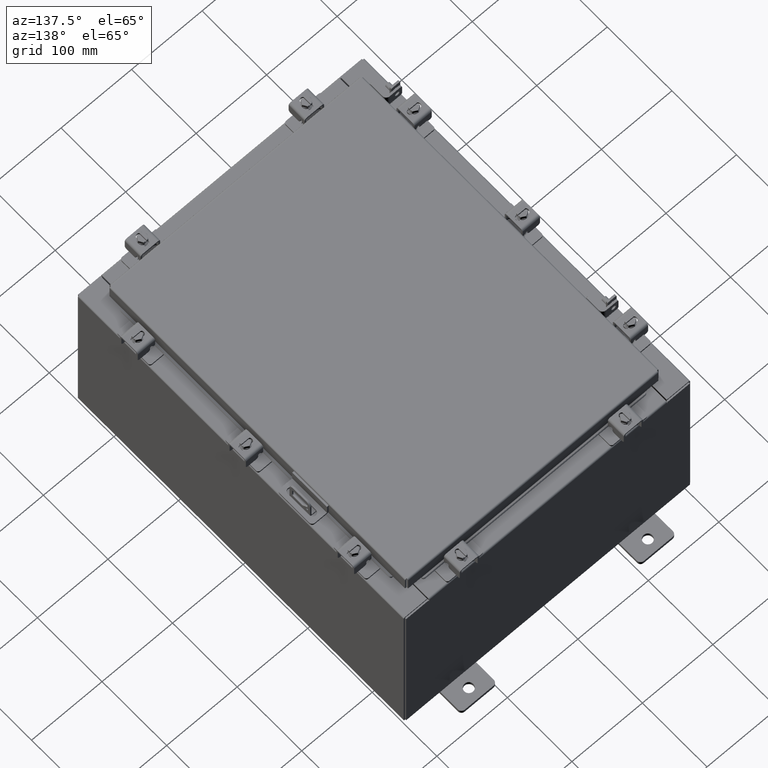
[diagram: clean part render]
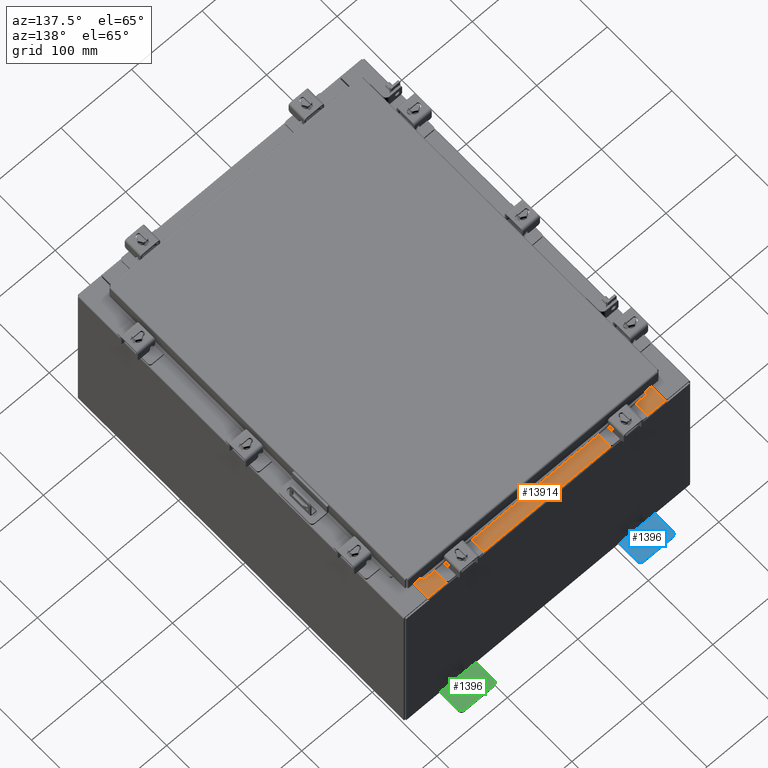
[diagram: same view with three faces highlighted in distinct colors, each labeled with its STEP entity id]
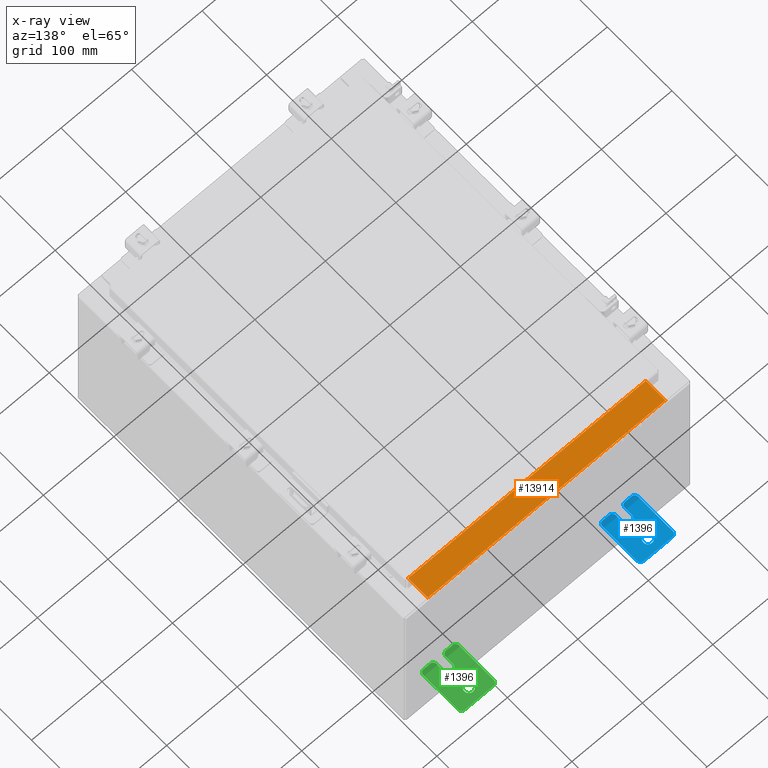
[diagram: x-ray of the same camera — body ghosted, the three highlighted faces saturated]
A machine part, auxiliary view with three faces highlighted in distinct colors.
The next image is the same camera in x-ray (body ghosted, the three faces saturated) — at least one of them is partly hidden behind the body in this view.
Their STEP definitions:

[orange] entity #13914 — the highlighted planar face has unit normal (0, 0, 1).
#375 = CARTESIAN_POINT ( 'NONE',  ( 6.637200000000000000, -1.287299999999999900, 5.000000000000005300 ) ) ;
#625 = CARTESIAN_POINT ( 'NONE',  ( 6.637200000000000900, -1.287299999999999900, 5.000000000000005300 ) ) ;
#1288 = VECTOR ( 'NONE', #18999, 39.37007874015748100 ) ;
#1534 = VERTEX_POINT ( 'NONE', #17294 ) ;
#1683 = DIRECTION ( 'NONE',  ( 0.0000000000000000000, 3.566381192773190000E-015, 1.000000000000000000 ) ) ;
#1830 = LINE ( 'NONE', #17081, #1288 ) ;
#1990 = CARTESIAN_POINT ( 'NONE',  ( 6.637199999999999100, -0.08769999999999993100, 5.000000000000000900 ) ) ;
#2374 = ORIENTED_EDGE ( 'NONE', *, *, #8802, .F. ) ;
#2936 = DIRECTION ( 'NONE',  ( -1.000000000000000000, 0.0000000000000000000, 0.0000000000000000000 ) ) ;
#3814 = EDGE_LOOP ( 'NONE', ( #2374, #16915, #19283, #17728 ) ) ;
#3996 = EDGE_CURVE ( 'NONE', #18547, #4115, #5377, .T. ) ;
#4082 = LINE ( 'NONE', #13237, #9203 ) ;
#4115 = VERTEX_POINT ( 'NONE', #375 ) ;
#5037 = CARTESIAN_POINT ( 'NONE',  ( 0.0000000000000000000, 1.782631094477738200E-014, 5.000000000000000900 ) ) ;
#5377 = LINE ( 'NONE', #15622, #14579 ) ;
#7287 = AXIS2_PLACEMENT_3D ( 'NONE', #5037, #1683, #13716 ) ;
#8802 = EDGE_CURVE ( 'NONE', #1534, #20853, #1830, .T. ) ;
#9203 = VECTOR ( 'NONE', #2936, 39.37007874015748100 ) ;
#9397 = FACE_OUTER_BOUND ( 'NONE', #3814, .T. ) ;
#10657 = EDGE_CURVE ( 'NONE', #4115, #1534, #13039, .T. ) ;
#10999 = CARTESIAN_POINT ( 'NONE',  ( -6.637200000000000000, -0.08770000000000026400, 5.000000000000000900 ) ) ;
#11530 = EDGE_CURVE ( 'NONE', #18547, #20853, #4082, .T. ) ;
#12673 = DIRECTION ( 'NONE',  ( -1.000000000000000000, 0.0000000000000000000, 0.0000000000000000000 ) ) ;
#13039 = LINE ( 'NONE', #625, #21830 ) ;
#13237 = CARTESIAN_POINT ( 'NONE',  ( 0.0000000000000000000, -0.08770000000000026400, 5.000000000000000900 ) ) ;
#13716 = DIRECTION ( 'NONE',  ( 0.0000000000000000000, -1.000000000000000000, 3.566381192773190000E-015 ) ) ;
#13871 = DIRECTION ( 'NONE',  ( -0.0000000000000000000, -1.000000000000000000, 3.566381192773190000E-015 ) ) ;
#13914 = ADVANCED_FACE ( 'NONE', ( #9397 ), #22503, .T. ) ;
#14579 = VECTOR ( 'NONE', #13871, 39.37007874015748100 ) ;
#15622 = CARTESIAN_POINT ( 'NONE',  ( 6.637200000000000000, -1.300299999999999800, 5.000000000000005300 ) ) ;
#16915 = ORIENTED_EDGE ( 'NONE', *, *, #10657, .F. ) ;
#17081 = CARTESIAN_POINT ( 'NONE',  ( -6.637200000000000000, -0.07469999999999973900, 5.000000000000000900 ) ) ;
#17294 = CARTESIAN_POINT ( 'NONE',  ( -6.637200000000000000, -1.287299999999999200, 5.000000000000005300 ) ) ;
#17728 = ORIENTED_EDGE ( 'NONE', *, *, #11530, .T. ) ;
#18547 = VERTEX_POINT ( 'NONE', #1990 ) ;
#18999 = DIRECTION ( 'NONE',  ( -0.0000000000000000000, 1.000000000000000000, -3.566381192773190000E-015 ) ) ;
#19283 = ORIENTED_EDGE ( 'NONE', *, *, #3996, .F. ) ;
#20853 = VERTEX_POINT ( 'NONE', #10999 ) ;
#21830 = VECTOR ( 'NONE', #12673, 39.37007874015748100 ) ;
#22503 = PLANE ( 'NONE',  #7287 ) ;

[blue] entity #1396 — the highlighted planar face has unit normal (0, 0, 1).
#1115 = DIRECTION ( 'NONE',  ( 0.0000000000000000000, 0.0000000000000000000, -1.000000000000000000 ) ) ;
#1396 = ADVANCED_FACE ( 'NONE', ( #20990, #16293 ), #9125, .T. ) ;
#1501 = VERTEX_POINT ( 'NONE', #1643 ) ;
#1643 = CARTESIAN_POINT ( 'NONE',  ( 0.0000000000000000000, -1.060000000000004500, -1.000000000000006400 ) ) ;
#2095 = ORIENTED_EDGE ( 'NONE', *, *, #17208, .T. ) ;
#2319 = VERTEX_POINT ( 'NONE', #14204 ) ;
#2434 = CARTESIAN_POINT ( 'NONE',  ( 0.0000000000000000000, -1.250000000000004700, -0.4400000000000002200 ) ) ;
#2497 = DIRECTION ( 'NONE',  ( 1.000000000000000000, 0.0000000000000000000, -0.0000000000000000000 ) ) ;
#2581 = AXIS2_PLACEMENT_3D ( 'NONE', #19738, #9246, #21494 ) ;
#3083 = DIRECTION ( 'NONE',  ( 6.556435184794182400E-016, 1.000000000000000000, 0.0000000000000000000 ) ) ;
#3585 = VERTEX_POINT ( 'NONE', #12907 ) ;
#4141 = CARTESIAN_POINT ( 'NONE',  ( 0.0000000000000000000, -1.060000000000002100, 0.4400000000000016700 ) ) ;
#4634 = CARTESIAN_POINT ( 'NONE',  ( 0.0000000000000000000, 1.059999999999993400, -1.000000000000010000 ) ) ;
#4668 = CARTESIAN_POINT ( 'NONE',  ( 0.0000000000000000000, -1.250000000000002200, 0.9999999999999992200 ) ) ;
#4734 = AXIS2_PLACEMENT_3D ( 'NONE', #20547, #10025, #22306 ) ;
#4813 = DIRECTION ( 'NONE',  ( -1.000000000000000000, 6.523827964459549700E-016, 5.163192708025532000E-017 ) ) ;
#4957 = LINE ( 'NONE', #14169, #9001 ) ;
#5060 = ORIENTED_EDGE ( 'NONE', *, *, #18782, .T. ) ;
#5197 = CARTESIAN_POINT ( 'NONE',  ( 4.039428427013647300E-016, 0.6249999999999992200, -9.783840404509077400E-018 ) ) ;
#5698 = VECTOR ( 'NONE', #11198, 39.37007874015748100 ) ;
#5705 = EDGE_CURVE ( 'NONE', #13913, #8416, #6761, .T. ) ;
#5868 = DIRECTION ( 'NONE',  ( 0.0000000000000000000, 0.0000000000000000000, -1.000000000000000000 ) ) ;
#6230 = AXIS2_PLACEMENT_3D ( 'NONE', #7032, #19242, #8781 ) ;
#6367 = DIRECTION ( 'NONE',  ( 0.0000000000000000000, 1.639108796198553600E-015, 1.000000000000000000 ) ) ;
#6431 = AXIS2_PLACEMENT_3D ( 'NONE', #21926, #11411, #1115 ) ;
#6540 = VECTOR ( 'NONE', #22109, 39.37007874015748100 ) ;
#6579 = DIRECTION ( 'NONE',  ( -6.556435184794182400E-016, -1.000000000000000000, -1.639108796198545600E-016 ) ) ;
#6728 = CARTESIAN_POINT ( 'NONE',  ( 0.0000000000000000000, 0.0000000000000000000, 0.0000000000000000000 ) ) ;
#6761 = CIRCLE ( 'NONE', #18742, 0.1900000000000011100 ) ;
#6861 = AXIS2_PLACEMENT_3D ( 'NONE', #12813, #2497, #14537 ) ;
#6933 = DIRECTION ( 'NONE',  ( -5.163192708025533800E-017, 0.0000000000000000000, -1.000000000000000000 ) ) ;
#7032 = CARTESIAN_POINT ( 'NONE',  ( 4.039428427013647300E-016, 0.6249999999999992200, -9.783840404509077400E-018 ) ) ;
#7393 = VECTOR ( 'NONE', #13589, 39.37007874015748100 ) ;
#7488 = CARTESIAN_POINT ( 'NONE',  ( 0.0000000000000000000, -1.250000000000005300, -0.8100000000000047200 ) ) ;
#7715 = DIRECTION ( 'NONE',  ( 1.000000000000000000, 0.0000000000000000000, -0.0000000000000000000 ) ) ;
#7755 = ORIENTED_EDGE ( 'NONE', *, *, #14807, .T. ) ;
#7798 = ORIENTED_EDGE ( 'NONE', *, *, #15648, .T. ) ;
#7835 = LINE ( 'NONE', #11726, #13006 ) ;
#8027 = CIRCLE ( 'NONE', #6861, 0.1900000000000011100 ) ;
#8416 = VERTEX_POINT ( 'NONE', #19563 ) ;
#8440 = CARTESIAN_POINT ( 'NONE',  ( 4.168508244714285900E-016, 0.6249999999999992200, 0.2499999999999999200 ) ) ;
#8516 = CARTESIAN_POINT ( 'NONE',  ( 0.0000000000000000000, -1.060000000000001200, 0.9999999999999988900 ) ) ;
#8781 = DIRECTION ( 'NONE',  ( -5.163192708025533800E-017, 0.0000000000000000000, -1.000000000000000000 ) ) ;
#9001 = VECTOR ( 'NONE', #17731, 39.37007874015748100 ) ;
#9125 = PLANE ( 'NONE',  #15109 ) ;
#9246 = DIRECTION ( 'NONE',  ( 1.000000000000000000, 0.0000000000000000000, -0.0000000000000000000 ) ) ;
#9325 = AXIS2_PLACEMENT_3D ( 'NONE', #15169, #4813, #16970 ) ;
#9759 = CIRCLE ( 'NONE', #9777, 0.1900000000000011400 ) ;
#9777 = AXIS2_PLACEMENT_3D ( 'NONE', #4141, #16263, #5868 ) ;
#9815 = VERTEX_POINT ( 'NONE', #19126 ) ;
#9961 = EDGE_CURVE ( 'NONE', #8416, #20334, #4957, .T. ) ;
#10025 = DIRECTION ( 'NONE',  ( 1.000000000000000000, 0.0000000000000000000, -0.0000000000000000000 ) ) ;
#10557 = LINE ( 'NONE', #4668, #6540 ) ;
#11021 = VECTOR ( 'NONE', #6367, 39.37007874015748100 ) ;
#11198 = DIRECTION ( 'NONE',  ( 0.0000000000000000000, 1.000000000000000000, -1.639108796198558100E-015 ) ) ;
#11230 = EDGE_LOOP ( 'NONE', ( #11815, #19361, #15240, #13222, #15019, #2095, #5060, #21508, #15518, #7755, #19694, #7798, #22232, #18959 ) ) ;
#11406 = VERTEX_POINT ( 'NONE', #12807 ) ;
#11407 = EDGE_CURVE ( 'NONE', #1501, #17744, #15458, .T. ) ;
#11411 = DIRECTION ( 'NONE',  ( 1.000000000000000000, 0.0000000000000000000, -0.0000000000000000000 ) ) ;
#11689 = VECTOR ( 'NONE', #6579, 39.37007874015748100 ) ;
#11726 = CARTESIAN_POINT ( 'NONE',  ( 6.829619984160658000E-017, -1.250000000000003800, 0.2500000000000005000 ) ) ;
#11783 = CARTESIAN_POINT ( 'NONE',  ( 4.780733988912460100E-016, -0.6249999999999993300, -0.2499999999999993900 ) ) ;
#11815 = ORIENTED_EDGE ( 'NONE', *, *, #16713, .T. ) ;
#12247 = VERTEX_POINT ( 'NONE', #2434 ) ;
#12287 = CIRCLE ( 'NONE', #9325, 0.2499999999999999200 ) ;
#12539 = LINE ( 'NONE', #18988, #7393 ) ;
#12807 = CARTESIAN_POINT ( 'NONE',  ( 4.780733988912460100E-016, -0.6249999999999993300, -0.2499999999999998600 ) ) ;
#12813 = CARTESIAN_POINT ( 'NONE',  ( 0.0000000000000000000, 1.059999999999996300, 0.8099999999999938400 ) ) ;
#12905 = DIRECTION ( 'NONE',  ( -0.0000000000000000000, 0.0000000000000000000, -1.000000000000000000 ) ) ;
#12907 = CARTESIAN_POINT ( 'NONE',  ( 0.0000000000000000000, 1.249999999999997300, 0.8099999999999935000 ) ) ;
#13006 = VECTOR ( 'NONE', #3083, 39.37007874015748100 ) ;
#13015 = EDGE_CURVE ( 'NONE', #15623, #3585, #15650, .T. ) ;
#13222 = ORIENTED_EDGE ( 'NONE', *, *, #19091, .T. ) ;
#13580 = CIRCLE ( 'NONE', #13703, 0.2499999999999999200 ) ;
#13589 = DIRECTION ( 'NONE',  ( 0.0000000000000000000, -1.000000000000000000, 1.639108796198558100E-015 ) ) ;
#13703 = AXIS2_PLACEMENT_3D ( 'NONE', #5197, #17377, #6933 ) ;
#13867 = DIRECTION ( 'NONE',  ( 1.000000000000000000, 0.0000000000000000000, -0.0000000000000000000 ) ) ;
#13913 = VERTEX_POINT ( 'NONE', #8516 ) ;
#14169 = CARTESIAN_POINT ( 'NONE',  ( 0.0000000000000000000, -1.250000000000002200, 0.9999999999999992200 ) ) ;
#14202 = EDGE_CURVE ( 'NONE', #3585, #20916, #8027, .T. ) ;
#14204 = CARTESIAN_POINT ( 'NONE',  ( 1.928684683526964400E-016, -1.060000000000003400, -0.2499999999999994400 ) ) ;
#14527 = VERTEX_POINT ( 'NONE', #8440 ) ;
#14537 = DIRECTION ( 'NONE',  ( 0.0000000000000000000, 0.0000000000000000000, -1.000000000000000000 ) ) ;
#14600 = CARTESIAN_POINT ( 'NONE',  ( 0.0000000000000000000, -1.250000000000003100, 0.4400000000000020000 ) ) ;
#14807 = EDGE_CURVE ( 'NONE', #17567, #1501, #19778, .T. ) ;
#15019 = ORIENTED_EDGE ( 'NONE', *, *, #19998, .T. ) ;
#15109 = AXIS2_PLACEMENT_3D ( 'NONE', #6728, #13867, #12905 ) ;
#15118 = CIRCLE ( 'NONE', #6230, 0.2499999999999999200 ) ;
#15136 = CARTESIAN_POINT ( 'NONE',  ( 0.0000000000000000000, 1.249999999999994700, -0.8100000000000092700 ) ) ;
#15169 = CARTESIAN_POINT ( 'NONE',  ( 4.780733988912460100E-016, -0.6249999999999993300, 5.858939755051854500E-017 ) ) ;
#15240 = ORIENTED_EDGE ( 'NONE', *, *, #9961, .T. ) ;
#15458 = LINE ( 'NONE', #19958, #5698 ) ;
#15518 = ORIENTED_EDGE ( 'NONE', *, *, #19312, .T. ) ;
#15623 = VERTEX_POINT ( 'NONE', #15136 ) ;
#15648 = EDGE_CURVE ( 'NONE', #17744, #15623, #17813, .T. ) ;
#15650 = LINE ( 'NONE', #18544, #11021 ) ;
#15993 = EDGE_CURVE ( 'NONE', #2319, #12247, #21107, .T. ) ;
#16263 = DIRECTION ( 'NONE',  ( 1.000000000000000000, 0.0000000000000000000, -0.0000000000000000000 ) ) ;
#16293 = FACE_OUTER_BOUND ( 'NONE', #11230, .T. ) ;
#16713 = EDGE_CURVE ( 'NONE', #20916, #13913, #12539, .T. ) ;
#16970 = DIRECTION ( 'NONE',  ( -6.523827964459551700E-016, -1.000000000000000000, 0.0000000000000000000 ) ) ;
#17208 = EDGE_CURVE ( 'NONE', #9815, #11406, #12287, .T. ) ;
#17377 = DIRECTION ( 'NONE',  ( 1.000000000000000000, -0.0000000000000000000, -5.163192708025532000E-017 ) ) ;
#17567 = VERTEX_POINT ( 'NONE', #7488 ) ;
#17731 = DIRECTION ( 'NONE',  ( 0.0000000000000000000, -1.639108796198553600E-015, -1.000000000000000000 ) ) ;
#17744 = VERTEX_POINT ( 'NONE', #4634 ) ;
#17813 = CIRCLE ( 'NONE', #4734, 0.1900000000000011100 ) ;
#18183 = CARTESIAN_POINT ( 'NONE',  ( 0.0000000000000000000, -1.060000000000001600, 0.8099999999999978300 ) ) ;
#18544 = CARTESIAN_POINT ( 'NONE',  ( 0.0000000000000000000, 1.249999999999994200, -1.000000000000010400 ) ) ;
#18742 = AXIS2_PLACEMENT_3D ( 'NONE', #18183, #7715, #19961 ) ;
#18782 = EDGE_CURVE ( 'NONE', #11406, #2319, #21032, .T. ) ;
#18906 = EDGE_CURVE ( 'NONE', #14527, #21477, #13580, .T. ) ;
#18959 = ORIENTED_EDGE ( 'NONE', *, *, #14202, .T. ) ;
#18988 = CARTESIAN_POINT ( 'NONE',  ( 0.0000000000000000000, 1.249999999999997600, 0.9999999999999951200 ) ) ;
#19091 = EDGE_CURVE ( 'NONE', #20334, #21445, #9759, .T. ) ;
#19126 = CARTESIAN_POINT ( 'NONE',  ( 0.0000000000000000000, -0.6249999999999992200, 0.2500000000000005000 ) ) ;
#19166 = ORIENTED_EDGE ( 'NONE', *, *, #18906, .F. ) ;
#19242 = DIRECTION ( 'NONE',  ( 1.000000000000000000, -0.0000000000000000000, -5.163192708025532000E-017 ) ) ;
#19312 = EDGE_CURVE ( 'NONE', #12247, #17567, #10557, .T. ) ;
#19361 = ORIENTED_EDGE ( 'NONE', *, *, #5705, .T. ) ;
#19563 = CARTESIAN_POINT ( 'NONE',  ( 0.0000000000000000000, -1.250000000000002400, 0.8099999999999980500 ) ) ;
#19674 = ORIENTED_EDGE ( 'NONE', *, *, #21442, .F. ) ;
#19683 = EDGE_LOOP ( 'NONE', ( #19674, #19166 ) ) ;
#19694 = ORIENTED_EDGE ( 'NONE', *, *, #11407, .T. ) ;
#19738 = CARTESIAN_POINT ( 'NONE',  ( 0.0000000000000000000, -1.060000000000004100, -0.8100000000000050500 ) ) ;
#19778 = CIRCLE ( 'NONE', #2581, 0.1900000000000011100 ) ;
#19958 = CARTESIAN_POINT ( 'NONE',  ( 0.0000000000000000000, -1.250000000000005600, -1.000000000000006200 ) ) ;
#19961 = DIRECTION ( 'NONE',  ( 0.0000000000000000000, 0.0000000000000000000, -1.000000000000000000 ) ) ;
#19998 = EDGE_CURVE ( 'NONE', #21445, #9815, #7835, .T. ) ;
#20334 = VERTEX_POINT ( 'NONE', #14600 ) ;
#20547 = CARTESIAN_POINT ( 'NONE',  ( 0.0000000000000000000, 1.059999999999993600, -0.8100000000000089400 ) ) ;
#20916 = VERTEX_POINT ( 'NONE', #21729 ) ;
#20934 = CARTESIAN_POINT ( 'NONE',  ( 1.928684683526972300E-016, -1.060000000000002100, 0.2500000000000005000 ) ) ;
#20990 = FACE_BOUND ( 'NONE', #19683, .T. ) ;
#21007 = CARTESIAN_POINT ( 'NONE',  ( 3.910348609313009100E-016, 0.6249999999999992200, -0.2499999999999999200 ) ) ;
#21032 = LINE ( 'NONE', #11783, #11689 ) ;
#21107 = CIRCLE ( 'NONE', #6431, 0.1900000000000011100 ) ;
#21442 = EDGE_CURVE ( 'NONE', #21477, #14527, #15118, .T. ) ;
#21445 = VERTEX_POINT ( 'NONE', #20934 ) ;
#21477 = VERTEX_POINT ( 'NONE', #21007 ) ;
#21494 = DIRECTION ( 'NONE',  ( 0.0000000000000000000, 0.0000000000000000000, -1.000000000000000000 ) ) ;
#21508 = ORIENTED_EDGE ( 'NONE', *, *, #15993, .T. ) ;
#21729 = CARTESIAN_POINT ( 'NONE',  ( 0.0000000000000000000, 1.059999999999996500, 0.9999999999999953400 ) ) ;
#21926 = CARTESIAN_POINT ( 'NONE',  ( 0.0000000000000000000, -1.060000000000003400, -0.4400000000000005000 ) ) ;
#22109 = DIRECTION ( 'NONE',  ( 0.0000000000000000000, -1.639108796198553600E-015, -1.000000000000000000 ) ) ;
#22232 = ORIENTED_EDGE ( 'NONE', *, *, #13015, .T. ) ;
#22306 = DIRECTION ( 'NONE',  ( 0.0000000000000000000, 0.0000000000000000000, -1.000000000000000000 ) ) ;

[green] entity #1396 — the highlighted planar face has unit normal (0, 0, 1).
#1115 = DIRECTION ( 'NONE',  ( 0.0000000000000000000, 0.0000000000000000000, -1.000000000000000000 ) ) ;
#1396 = ADVANCED_FACE ( 'NONE', ( #20990, #16293 ), #9125, .T. ) ;
#1501 = VERTEX_POINT ( 'NONE', #1643 ) ;
#1643 = CARTESIAN_POINT ( 'NONE',  ( 0.0000000000000000000, -1.060000000000004500, -1.000000000000006400 ) ) ;
#2095 = ORIENTED_EDGE ( 'NONE', *, *, #17208, .T. ) ;
#2319 = VERTEX_POINT ( 'NONE', #14204 ) ;
#2434 = CARTESIAN_POINT ( 'NONE',  ( 0.0000000000000000000, -1.250000000000004700, -0.4400000000000002200 ) ) ;
#2497 = DIRECTION ( 'NONE',  ( 1.000000000000000000, 0.0000000000000000000, -0.0000000000000000000 ) ) ;
#2581 = AXIS2_PLACEMENT_3D ( 'NONE', #19738, #9246, #21494 ) ;
#3083 = DIRECTION ( 'NONE',  ( 6.556435184794182400E-016, 1.000000000000000000, 0.0000000000000000000 ) ) ;
#3585 = VERTEX_POINT ( 'NONE', #12907 ) ;
#4141 = CARTESIAN_POINT ( 'NONE',  ( 0.0000000000000000000, -1.060000000000002100, 0.4400000000000016700 ) ) ;
#4634 = CARTESIAN_POINT ( 'NONE',  ( 0.0000000000000000000, 1.059999999999993400, -1.000000000000010000 ) ) ;
#4668 = CARTESIAN_POINT ( 'NONE',  ( 0.0000000000000000000, -1.250000000000002200, 0.9999999999999992200 ) ) ;
#4734 = AXIS2_PLACEMENT_3D ( 'NONE', #20547, #10025, #22306 ) ;
#4813 = DIRECTION ( 'NONE',  ( -1.000000000000000000, 6.523827964459549700E-016, 5.163192708025532000E-017 ) ) ;
#4957 = LINE ( 'NONE', #14169, #9001 ) ;
#5060 = ORIENTED_EDGE ( 'NONE', *, *, #18782, .T. ) ;
#5197 = CARTESIAN_POINT ( 'NONE',  ( 4.039428427013647300E-016, 0.6249999999999992200, -9.783840404509077400E-018 ) ) ;
#5698 = VECTOR ( 'NONE', #11198, 39.37007874015748100 ) ;
#5705 = EDGE_CURVE ( 'NONE', #13913, #8416, #6761, .T. ) ;
#5868 = DIRECTION ( 'NONE',  ( 0.0000000000000000000, 0.0000000000000000000, -1.000000000000000000 ) ) ;
#6230 = AXIS2_PLACEMENT_3D ( 'NONE', #7032, #19242, #8781 ) ;
#6367 = DIRECTION ( 'NONE',  ( 0.0000000000000000000, 1.639108796198553600E-015, 1.000000000000000000 ) ) ;
#6431 = AXIS2_PLACEMENT_3D ( 'NONE', #21926, #11411, #1115 ) ;
#6540 = VECTOR ( 'NONE', #22109, 39.37007874015748100 ) ;
#6579 = DIRECTION ( 'NONE',  ( -6.556435184794182400E-016, -1.000000000000000000, -1.639108796198545600E-016 ) ) ;
#6728 = CARTESIAN_POINT ( 'NONE',  ( 0.0000000000000000000, 0.0000000000000000000, 0.0000000000000000000 ) ) ;
#6761 = CIRCLE ( 'NONE', #18742, 0.1900000000000011100 ) ;
#6861 = AXIS2_PLACEMENT_3D ( 'NONE', #12813, #2497, #14537 ) ;
#6933 = DIRECTION ( 'NONE',  ( -5.163192708025533800E-017, 0.0000000000000000000, -1.000000000000000000 ) ) ;
#7032 = CARTESIAN_POINT ( 'NONE',  ( 4.039428427013647300E-016, 0.6249999999999992200, -9.783840404509077400E-018 ) ) ;
#7393 = VECTOR ( 'NONE', #13589, 39.37007874015748100 ) ;
#7488 = CARTESIAN_POINT ( 'NONE',  ( 0.0000000000000000000, -1.250000000000005300, -0.8100000000000047200 ) ) ;
#7715 = DIRECTION ( 'NONE',  ( 1.000000000000000000, 0.0000000000000000000, -0.0000000000000000000 ) ) ;
#7755 = ORIENTED_EDGE ( 'NONE', *, *, #14807, .T. ) ;
#7798 = ORIENTED_EDGE ( 'NONE', *, *, #15648, .T. ) ;
#7835 = LINE ( 'NONE', #11726, #13006 ) ;
#8027 = CIRCLE ( 'NONE', #6861, 0.1900000000000011100 ) ;
#8416 = VERTEX_POINT ( 'NONE', #19563 ) ;
#8440 = CARTESIAN_POINT ( 'NONE',  ( 4.168508244714285900E-016, 0.6249999999999992200, 0.2499999999999999200 ) ) ;
#8516 = CARTESIAN_POINT ( 'NONE',  ( 0.0000000000000000000, -1.060000000000001200, 0.9999999999999988900 ) ) ;
#8781 = DIRECTION ( 'NONE',  ( -5.163192708025533800E-017, 0.0000000000000000000, -1.000000000000000000 ) ) ;
#9001 = VECTOR ( 'NONE', #17731, 39.37007874015748100 ) ;
#9125 = PLANE ( 'NONE',  #15109 ) ;
#9246 = DIRECTION ( 'NONE',  ( 1.000000000000000000, 0.0000000000000000000, -0.0000000000000000000 ) ) ;
#9325 = AXIS2_PLACEMENT_3D ( 'NONE', #15169, #4813, #16970 ) ;
#9759 = CIRCLE ( 'NONE', #9777, 0.1900000000000011400 ) ;
#9777 = AXIS2_PLACEMENT_3D ( 'NONE', #4141, #16263, #5868 ) ;
#9815 = VERTEX_POINT ( 'NONE', #19126 ) ;
#9961 = EDGE_CURVE ( 'NONE', #8416, #20334, #4957, .T. ) ;
#10025 = DIRECTION ( 'NONE',  ( 1.000000000000000000, 0.0000000000000000000, -0.0000000000000000000 ) ) ;
#10557 = LINE ( 'NONE', #4668, #6540 ) ;
#11021 = VECTOR ( 'NONE', #6367, 39.37007874015748100 ) ;
#11198 = DIRECTION ( 'NONE',  ( 0.0000000000000000000, 1.000000000000000000, -1.639108796198558100E-015 ) ) ;
#11230 = EDGE_LOOP ( 'NONE', ( #11815, #19361, #15240, #13222, #15019, #2095, #5060, #21508, #15518, #7755, #19694, #7798, #22232, #18959 ) ) ;
#11406 = VERTEX_POINT ( 'NONE', #12807 ) ;
#11407 = EDGE_CURVE ( 'NONE', #1501, #17744, #15458, .T. ) ;
#11411 = DIRECTION ( 'NONE',  ( 1.000000000000000000, 0.0000000000000000000, -0.0000000000000000000 ) ) ;
#11689 = VECTOR ( 'NONE', #6579, 39.37007874015748100 ) ;
#11726 = CARTESIAN_POINT ( 'NONE',  ( 6.829619984160658000E-017, -1.250000000000003800, 0.2500000000000005000 ) ) ;
#11783 = CARTESIAN_POINT ( 'NONE',  ( 4.780733988912460100E-016, -0.6249999999999993300, -0.2499999999999993900 ) ) ;
#11815 = ORIENTED_EDGE ( 'NONE', *, *, #16713, .T. ) ;
#12247 = VERTEX_POINT ( 'NONE', #2434 ) ;
#12287 = CIRCLE ( 'NONE', #9325, 0.2499999999999999200 ) ;
#12539 = LINE ( 'NONE', #18988, #7393 ) ;
#12807 = CARTESIAN_POINT ( 'NONE',  ( 4.780733988912460100E-016, -0.6249999999999993300, -0.2499999999999998600 ) ) ;
#12813 = CARTESIAN_POINT ( 'NONE',  ( 0.0000000000000000000, 1.059999999999996300, 0.8099999999999938400 ) ) ;
#12905 = DIRECTION ( 'NONE',  ( -0.0000000000000000000, 0.0000000000000000000, -1.000000000000000000 ) ) ;
#12907 = CARTESIAN_POINT ( 'NONE',  ( 0.0000000000000000000, 1.249999999999997300, 0.8099999999999935000 ) ) ;
#13006 = VECTOR ( 'NONE', #3083, 39.37007874015748100 ) ;
#13015 = EDGE_CURVE ( 'NONE', #15623, #3585, #15650, .T. ) ;
#13222 = ORIENTED_EDGE ( 'NONE', *, *, #19091, .T. ) ;
#13580 = CIRCLE ( 'NONE', #13703, 0.2499999999999999200 ) ;
#13589 = DIRECTION ( 'NONE',  ( 0.0000000000000000000, -1.000000000000000000, 1.639108796198558100E-015 ) ) ;
#13703 = AXIS2_PLACEMENT_3D ( 'NONE', #5197, #17377, #6933 ) ;
#13867 = DIRECTION ( 'NONE',  ( 1.000000000000000000, 0.0000000000000000000, -0.0000000000000000000 ) ) ;
#13913 = VERTEX_POINT ( 'NONE', #8516 ) ;
#14169 = CARTESIAN_POINT ( 'NONE',  ( 0.0000000000000000000, -1.250000000000002200, 0.9999999999999992200 ) ) ;
#14202 = EDGE_CURVE ( 'NONE', #3585, #20916, #8027, .T. ) ;
#14204 = CARTESIAN_POINT ( 'NONE',  ( 1.928684683526964400E-016, -1.060000000000003400, -0.2499999999999994400 ) ) ;
#14527 = VERTEX_POINT ( 'NONE', #8440 ) ;
#14537 = DIRECTION ( 'NONE',  ( 0.0000000000000000000, 0.0000000000000000000, -1.000000000000000000 ) ) ;
#14600 = CARTESIAN_POINT ( 'NONE',  ( 0.0000000000000000000, -1.250000000000003100, 0.4400000000000020000 ) ) ;
#14807 = EDGE_CURVE ( 'NONE', #17567, #1501, #19778, .T. ) ;
#15019 = ORIENTED_EDGE ( 'NONE', *, *, #19998, .T. ) ;
#15109 = AXIS2_PLACEMENT_3D ( 'NONE', #6728, #13867, #12905 ) ;
#15118 = CIRCLE ( 'NONE', #6230, 0.2499999999999999200 ) ;
#15136 = CARTESIAN_POINT ( 'NONE',  ( 0.0000000000000000000, 1.249999999999994700, -0.8100000000000092700 ) ) ;
#15169 = CARTESIAN_POINT ( 'NONE',  ( 4.780733988912460100E-016, -0.6249999999999993300, 5.858939755051854500E-017 ) ) ;
#15240 = ORIENTED_EDGE ( 'NONE', *, *, #9961, .T. ) ;
#15458 = LINE ( 'NONE', #19958, #5698 ) ;
#15518 = ORIENTED_EDGE ( 'NONE', *, *, #19312, .T. ) ;
#15623 = VERTEX_POINT ( 'NONE', #15136 ) ;
#15648 = EDGE_CURVE ( 'NONE', #17744, #15623, #17813, .T. ) ;
#15650 = LINE ( 'NONE', #18544, #11021 ) ;
#15993 = EDGE_CURVE ( 'NONE', #2319, #12247, #21107, .T. ) ;
#16263 = DIRECTION ( 'NONE',  ( 1.000000000000000000, 0.0000000000000000000, -0.0000000000000000000 ) ) ;
#16293 = FACE_OUTER_BOUND ( 'NONE', #11230, .T. ) ;
#16713 = EDGE_CURVE ( 'NONE', #20916, #13913, #12539, .T. ) ;
#16970 = DIRECTION ( 'NONE',  ( -6.523827964459551700E-016, -1.000000000000000000, 0.0000000000000000000 ) ) ;
#17208 = EDGE_CURVE ( 'NONE', #9815, #11406, #12287, .T. ) ;
#17377 = DIRECTION ( 'NONE',  ( 1.000000000000000000, -0.0000000000000000000, -5.163192708025532000E-017 ) ) ;
#17567 = VERTEX_POINT ( 'NONE', #7488 ) ;
#17731 = DIRECTION ( 'NONE',  ( 0.0000000000000000000, -1.639108796198553600E-015, -1.000000000000000000 ) ) ;
#17744 = VERTEX_POINT ( 'NONE', #4634 ) ;
#17813 = CIRCLE ( 'NONE', #4734, 0.1900000000000011100 ) ;
#18183 = CARTESIAN_POINT ( 'NONE',  ( 0.0000000000000000000, -1.060000000000001600, 0.8099999999999978300 ) ) ;
#18544 = CARTESIAN_POINT ( 'NONE',  ( 0.0000000000000000000, 1.249999999999994200, -1.000000000000010400 ) ) ;
#18742 = AXIS2_PLACEMENT_3D ( 'NONE', #18183, #7715, #19961 ) ;
#18782 = EDGE_CURVE ( 'NONE', #11406, #2319, #21032, .T. ) ;
#18906 = EDGE_CURVE ( 'NONE', #14527, #21477, #13580, .T. ) ;
#18959 = ORIENTED_EDGE ( 'NONE', *, *, #14202, .T. ) ;
#18988 = CARTESIAN_POINT ( 'NONE',  ( 0.0000000000000000000, 1.249999999999997600, 0.9999999999999951200 ) ) ;
#19091 = EDGE_CURVE ( 'NONE', #20334, #21445, #9759, .T. ) ;
#19126 = CARTESIAN_POINT ( 'NONE',  ( 0.0000000000000000000, -0.6249999999999992200, 0.2500000000000005000 ) ) ;
#19166 = ORIENTED_EDGE ( 'NONE', *, *, #18906, .F. ) ;
#19242 = DIRECTION ( 'NONE',  ( 1.000000000000000000, -0.0000000000000000000, -5.163192708025532000E-017 ) ) ;
#19312 = EDGE_CURVE ( 'NONE', #12247, #17567, #10557, .T. ) ;
#19361 = ORIENTED_EDGE ( 'NONE', *, *, #5705, .T. ) ;
#19563 = CARTESIAN_POINT ( 'NONE',  ( 0.0000000000000000000, -1.250000000000002400, 0.8099999999999980500 ) ) ;
#19674 = ORIENTED_EDGE ( 'NONE', *, *, #21442, .F. ) ;
#19683 = EDGE_LOOP ( 'NONE', ( #19674, #19166 ) ) ;
#19694 = ORIENTED_EDGE ( 'NONE', *, *, #11407, .T. ) ;
#19738 = CARTESIAN_POINT ( 'NONE',  ( 0.0000000000000000000, -1.060000000000004100, -0.8100000000000050500 ) ) ;
#19778 = CIRCLE ( 'NONE', #2581, 0.1900000000000011100 ) ;
#19958 = CARTESIAN_POINT ( 'NONE',  ( 0.0000000000000000000, -1.250000000000005600, -1.000000000000006200 ) ) ;
#19961 = DIRECTION ( 'NONE',  ( 0.0000000000000000000, 0.0000000000000000000, -1.000000000000000000 ) ) ;
#19998 = EDGE_CURVE ( 'NONE', #21445, #9815, #7835, .T. ) ;
#20334 = VERTEX_POINT ( 'NONE', #14600 ) ;
#20547 = CARTESIAN_POINT ( 'NONE',  ( 0.0000000000000000000, 1.059999999999993600, -0.8100000000000089400 ) ) ;
#20916 = VERTEX_POINT ( 'NONE', #21729 ) ;
#20934 = CARTESIAN_POINT ( 'NONE',  ( 1.928684683526972300E-016, -1.060000000000002100, 0.2500000000000005000 ) ) ;
#20990 = FACE_BOUND ( 'NONE', #19683, .T. ) ;
#21007 = CARTESIAN_POINT ( 'NONE',  ( 3.910348609313009100E-016, 0.6249999999999992200, -0.2499999999999999200 ) ) ;
#21032 = LINE ( 'NONE', #11783, #11689 ) ;
#21107 = CIRCLE ( 'NONE', #6431, 0.1900000000000011100 ) ;
#21442 = EDGE_CURVE ( 'NONE', #21477, #14527, #15118, .T. ) ;
#21445 = VERTEX_POINT ( 'NONE', #20934 ) ;
#21477 = VERTEX_POINT ( 'NONE', #21007 ) ;
#21494 = DIRECTION ( 'NONE',  ( 0.0000000000000000000, 0.0000000000000000000, -1.000000000000000000 ) ) ;
#21508 = ORIENTED_EDGE ( 'NONE', *, *, #15993, .T. ) ;
#21729 = CARTESIAN_POINT ( 'NONE',  ( 0.0000000000000000000, 1.059999999999996500, 0.9999999999999953400 ) ) ;
#21926 = CARTESIAN_POINT ( 'NONE',  ( 0.0000000000000000000, -1.060000000000003400, -0.4400000000000005000 ) ) ;
#22109 = DIRECTION ( 'NONE',  ( 0.0000000000000000000, -1.639108796198553600E-015, -1.000000000000000000 ) ) ;
#22232 = ORIENTED_EDGE ( 'NONE', *, *, #13015, .T. ) ;
#22306 = DIRECTION ( 'NONE',  ( 0.0000000000000000000, 0.0000000000000000000, -1.000000000000000000 ) ) ;